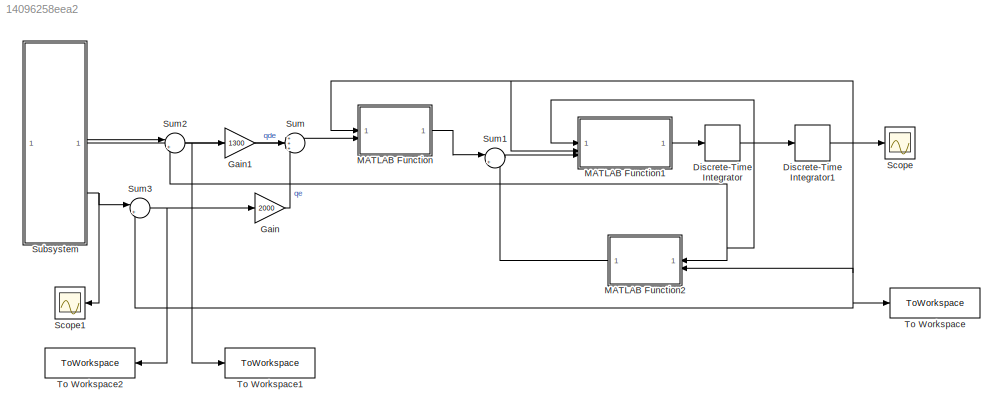
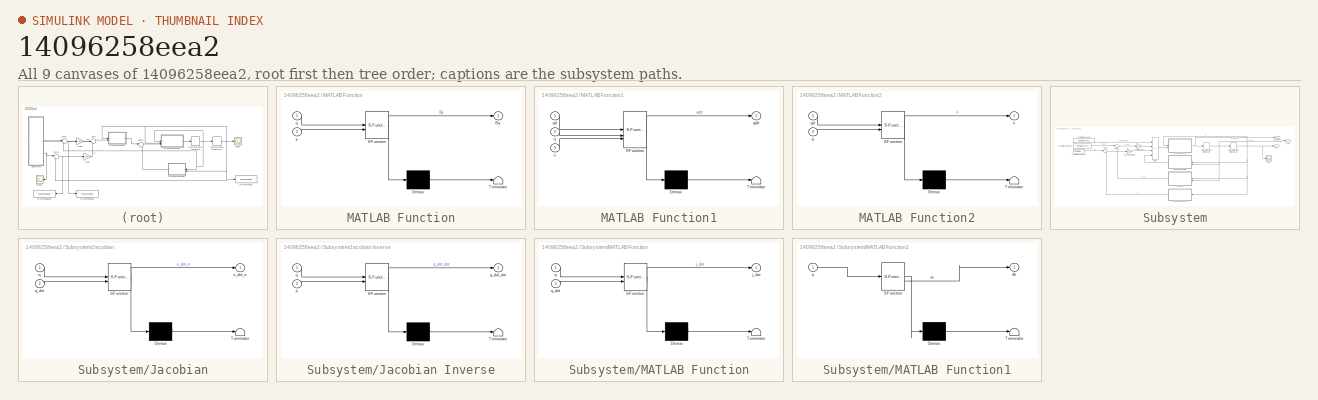
[diagram: thumbnail index - all 9 canvases of the model, root first then tree order]
MODEL slx_14096258eea2
KIND model
CONFIG AbsTol = auto
CONFIG EnableMultiTasking = off
CONFIG FixedStep = auto
CONFIG MaxStep = auto
CONFIG MinStep = auto
CONFIG RelTol = 1e-3
CONFIG SampleTimeConstraint = Unconstrained
CONFIG SolverName = VariableStepAuto
CONFIG StartTime = 0.0
CONFIG StopTime = 4
BLOCK [DiscreteIntegrator] Discrete-Time Integrator
  ICPrevOutput = DiscIntNeverNeededParam
  ICPrevScaledInput = DiscIntNeverNeededParam
  InitialCondition = [0;0;0;0]
  InitialConditionSetting = Auto
  SampleTime = Tc
BLOCK [DiscreteIntegrator] Discrete-Time Integrator1
  ICPrevOutput = DiscIntNeverNeededParam
  ICPrevScaledInput = DiscIntNeverNeededParam
  InitialCondition = q0
  InitialConditionSetting = Auto
  LimitOutput = on
  LowerSaturationLimit = [-pi/2 -pi/2 0.25 -2*pi]'
  SampleTime = Tc
  UpperSaturationLimit = [pi/2 pi/4 1 2*pi]'
BLOCK [Gain] Gain
  Gain = 2000
BLOCK [Gain] Gain1
  Gain = 1300
BLOCK [SubSystem] MATLAB Function
  ErrorFcn = Stateflow.Translate.translate
  LibrarySourceBlock = simulink/User-Defined\nFunctions/MATLAB Function
  PermitHierarchicalResolution = ExplicitOnly
  SFBlockType = MATLAB Function
  TreatAsAtomicUnit = on
BLOCK [Demux] MATLAB Function/ Demux 
  Outputs = 1
BLOCK [S-Function] MATLAB Function/ SFunction 
  EnableBusSupport = on
  FunctionName = sf_sfun
  PortCounts = [2 2]
  SFcnIsStateOwnerBlock = off
  SFunctionDeploymentMode = off
  Tag = Stateflow S-Function 5
BLOCK [Terminator] MATLAB Function/ Terminator 
BLOCK [Outport] MATLAB Function/By
BLOCK [Inport] MATLAB Function/q
BLOCK [Inport] MATLAB Function/y
  Port = 2
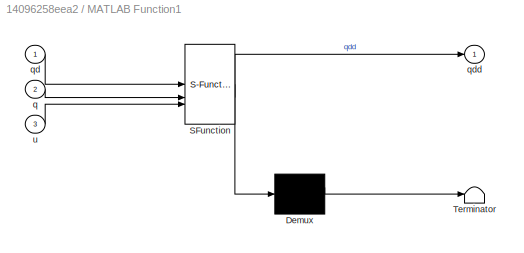
BLOCK [SubSystem] MATLAB Function1
  ErrorFcn = Stateflow.Translate.translate
  LibrarySourceBlock = simulink/User-Defined\nFunctions/MATLAB Function
  PermitHierarchicalResolution = ExplicitOnly
  SFBlockType = MATLAB Function
  TreatAsAtomicUnit = on
BLOCK [Demux] MATLAB Function1/ Demux 
  Outputs = 1
BLOCK [S-Function] MATLAB Function1/ SFunction 
  EnableBusSupport = on
  FunctionName = sf_sfun
  PortCounts = [3 2]
  SFcnIsStateOwnerBlock = off
  SFunctionDeploymentMode = off
  Tag = Stateflow S-Function 6
BLOCK [Terminator] MATLAB Function1/ Terminator 
BLOCK [Inport] MATLAB Function1/q
  Port = 2
BLOCK [Inport] MATLAB Function1/qd
BLOCK [Outport] MATLAB Function1/qdd
BLOCK [Inport] MATLAB Function1/u
  Port = 3
BLOCK [SubSystem] MATLAB Function2
  ErrorFcn = Stateflow.Translate.translate
  LibrarySourceBlock = simulink/User-Defined\nFunctions/MATLAB Function
  PermitHierarchicalResolution = ExplicitOnly
  SFBlockType = MATLAB Function
  TreatAsAtomicUnit = on
BLOCK [Demux] MATLAB Function2/ Demux 
  Outputs = 1
BLOCK [S-Function] MATLAB Function2/ SFunction 
  EnableBusSupport = on
  FunctionName = sf_sfun
  PortCounts = [2 2]
  SFcnIsStateOwnerBlock = off
  SFunctionDeploymentMode = off
  Tag = Stateflow S-Function 7
BLOCK [Terminator] MATLAB Function2/ Terminator 
BLOCK [Outport] MATLAB Function2/n
BLOCK [Inport] MATLAB Function2/q
  Port = 2
BLOCK [Inport] MATLAB Function2/qd
BLOCK [Scope] Scope
  Floating = off
  NumInputPorts = 1
  ScopeSpecificationString = Simulink.scopes.TimeScopeBlockCfg('CurrentConfiguration', extmgr.ConfigurationSet(extmgr.Configuration('Core','General UI',true),extmgr.Configuration('Core','Source UI',true),extmgr.Configuration('Sources','WiredSimulink',true),extmgr.Configuration('Visuals','Time Domain',true,'SerializedDisplays',{struct('MinYLimReal','-2.01717','MaxYLimReal','2.68446','YLabelReal','','MinYLimMag','0.00000','MaxY...<+1464ch>
BLOCK [Scope] Scope1
  Floating = off
  NumInputPorts = 1
  ScopeSpecificationString = Simulink.scopes.TimeScopeBlockCfg('CurrentConfiguration', extmgr.ConfigurationSet(extmgr.Configuration('Core','General UI',true),extmgr.Configuration('Core','Source UI',true),extmgr.Configuration('Sources','WiredSimulink',true,'DataLoggingVariableName','ScopeData1'),extmgr.Configuration('Visuals','Time Domain',true,'SerializedDisplays',{struct('MinYLimReal','-2.01717','MaxYLimReal','2.68446','YLab...<+1420ch>
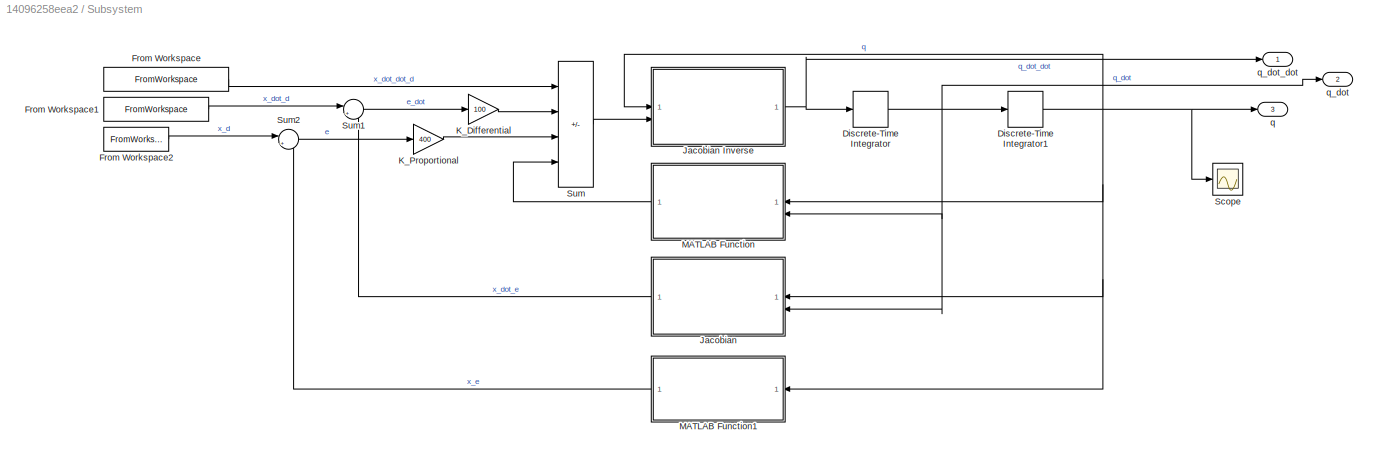
BLOCK [SubSystem] Subsystem
BLOCK [DiscreteIntegrator] Subsystem/Discrete-Time Integrator
  ICPrevOutput = DiscIntNeverNeededParam
  ICPrevScaledInput = DiscIntNeverNeededParam
  InitialConditionSetting = Auto
  LowerSaturationLimit = [-pi/2 -pi/2 0.25 -2*pi]'
  SampleTime = Tc
  UpperSaturationLimit = [pi/2 pi/4 1 2*pi]'
BLOCK [DiscreteIntegrator] Subsystem/Discrete-Time Integrator1
  ICPrevOutput = DiscIntNeverNeededParam
  ICPrevScaledInput = DiscIntNeverNeededParam
  InitialCondition = q0
  InitialConditionSetting = Auto
  LimitOutput = on
  LowerSaturationLimit = [-pi/2 -pi/2 0.25 -2*pi]'
  SampleTime = Tc
  UpperSaturationLimit = [pi/2 pi/4 1 2*pi]'
BLOCK [FromWorkspace] Subsystem/From Workspace
  OutputAfterFinalValue = Holding final value
  SampleTime = Tc
  VariableName = [t pd_dot_dot theta_d_dot_dot]
BLOCK [FromWorkspace] Subsystem/From Workspace1
  OutputAfterFinalValue = Holding final value
  SampleTime = Tc
  VariableName = [t pd_dot theta_d_dot]
BLOCK [FromWorkspace] Subsystem/From Workspace2
  OutputAfterFinalValue = Holding final value
  SampleTime = Tc
  VariableName = [t pd theta_d]
BLOCK [SubSystem] Subsystem/Jacobian
  ErrorFcn = Stateflow.Translate.translate
  LibrarySourceBlock = simulink/User-Defined\nFunctions/MATLAB Function
  PermitHierarchicalResolution = ExplicitOnly
  SFBlockType = MATLAB Function
  TreatAsAtomicUnit = on
BLOCK [SubSystem] Subsystem/Jacobian Inverse
  ErrorFcn = Stateflow.Translate.translate
  LibrarySourceBlock = simulink/User-Defined\nFunctions/MATLAB Function
  PermitHierarchicalResolution = ExplicitOnly
  SFBlockType = MATLAB Function
  TreatAsAtomicUnit = on
BLOCK [Demux] Subsystem/Jacobian Inverse/ Demux 
  Outputs = 1
BLOCK [S-Function] Subsystem/Jacobian Inverse/ SFunction 
  EnableBusSupport = on
  FunctionName = sf_sfun
  PortCounts = [2 2]
  SFcnIsStateOwnerBlock = off
  SFunctionDeploymentMode = off
  Tag = Stateflow S-Function 2
BLOCK [Terminator] Subsystem/Jacobian Inverse/ Terminator 
BLOCK [Inport] Subsystem/Jacobian Inverse/a
  Port = 2
BLOCK [Inport] Subsystem/Jacobian Inverse/q
BLOCK [Outport] Subsystem/Jacobian Inverse/q_dot_dot
BLOCK [Demux] Subsystem/Jacobian/ Demux 
  Outputs = 1
BLOCK [S-Function] Subsystem/Jacobian/ SFunction 
  EnableBusSupport = on
  FunctionName = sf_sfun
  PortCounts = [2 2]
  SFcnIsStateOwnerBlock = off
  SFunctionDeploymentMode = off
  Tag = Stateflow S-Function 3
BLOCK [Terminator] Subsystem/Jacobian/ Terminator 
BLOCK [Inport] Subsystem/Jacobian/q
BLOCK [Inport] Subsystem/Jacobian/q_dot
  Port = 2
BLOCK [Outport] Subsystem/Jacobian/x_dot_e
BLOCK [Gain] Subsystem/K_Differential
  Gain = 100
BLOCK [Gain] Subsystem/K_Proportional
  Gain = 400
BLOCK [SubSystem] Subsystem/MATLAB Function
  ErrorFcn = Stateflow.Translate.translate
  LibrarySourceBlock = simulink/User-Defined\nFunctions/MATLAB Function
  PermitHierarchicalResolution = ExplicitOnly
  SFBlockType = MATLAB Function
  TreatAsAtomicUnit = on
BLOCK [Demux] Subsystem/MATLAB Function/ Demux 
  Outputs = 1
BLOCK [S-Function] Subsystem/MATLAB Function/ SFunction 
  EnableBusSupport = on
  FunctionName = sf_sfun
  PortCounts = [2 2]
  SFcnIsStateOwnerBlock = off
  SFunctionDeploymentMode = off
  Tag = Stateflow S-Function 4
BLOCK [Terminator] Subsystem/MATLAB Function/ Terminator 
BLOCK [Outport] Subsystem/MATLAB Function/j_dot
BLOCK [Inport] Subsystem/MATLAB Function/q
BLOCK [Inport] Subsystem/MATLAB Function/q_dot
  Port = 2
BLOCK [SubSystem] Subsystem/MATLAB Function1
  ErrorFcn = Stateflow.Translate.translate
  LibrarySourceBlock = simulink/User-Defined\nFunctions/MATLAB Function
  PermitHierarchicalResolution = ExplicitOnly
  SFBlockType = MATLAB Function
  TreatAsAtomicUnit = on
BLOCK [Demux] Subsystem/MATLAB Function1/ Demux 
  Outputs = 1
BLOCK [S-Function] Subsystem/MATLAB Function1/ SFunction 
  EnableBusSupport = on
  FunctionName = sf_sfun
  PortCounts = [1 2]
  SFcnIsStateOwnerBlock = off
  SFunctionDeploymentMode = off
  Tag = Stateflow S-Function 1
BLOCK [Terminator] Subsystem/MATLAB Function1/ Terminator 
BLOCK [Outport] Subsystem/MATLAB Function1/dk
BLOCK [Inport] Subsystem/MATLAB Function1/q
BLOCK [Scope] Subsystem/Scope
  Floating = off
  NumInputPorts = 1
  ScopeSpecificationString = Simulink.scopes.TimeScopeBlockCfg('CurrentConfiguration', extmgr.ConfigurationSet(extmgr.Configuration('Core','General UI',true),extmgr.Configuration('Core','Source UI',true),extmgr.Configuration('Sources','WiredSimulink',true,'DataLoggingVariableName','ScopeData2'),extmgr.Configuration('Visuals','Time Domain',true,'SerializedDisplays',{struct('MinYLimReal','-2.01717','MaxYLimReal','2.68446','YLab...<+1380ch>
BLOCK [Sum] Subsystem/Sum
  IconShape = rectangular
  Inputs = +++-
BLOCK [Sum] Subsystem/Sum1
  Inputs = |+-
BLOCK [Sum] Subsystem/Sum2
  Inputs = |+-
BLOCK [Outport] Subsystem/q
  Port = 3
BLOCK [Outport] Subsystem/q_dot
  Port = 2
BLOCK [Outport] Subsystem/q_dot_dot
BLOCK [Sum] Sum
  Inputs = +++
BLOCK [Sum] Sum1
  Inputs = |++
BLOCK [Sum] Sum2
  Inputs = |+-
BLOCK [Sum] Sum3
  Inputs = |+-
BLOCK [ToWorkspace] To Workspace
  FixptAsFi = on
  MaxDataPoints = inf
  SampleTime = Tc
  VariableName = q
BLOCK [ToWorkspace] To Workspace1
  FixptAsFi = on
  MaxDataPoints = inf
  SampleTime = Tc
  VariableName = tracking_qd
BLOCK [ToWorkspace] To Workspace2
  FixptAsFi = on
  MaxDataPoints = inf
  SampleTime = Tc
  VariableName = tracking_q
NET Discrete-Time Integrator1:1 -> MATLAB Function1:2, MATLAB Function2:2, MATLAB Function:1, Scope:1, Sum3:2, To Workspace:1
NET Discrete-Time Integrator:1 -> Discrete-Time Integrator1:1, MATLAB Function1:1, MATLAB Function2:1, Sum2:2
LINE Gain1:1 -> Sum:2
LINE Gain:1 -> Sum:3
LINE MATLAB Function1:1 -> Discrete-Time Integrator:1
LINE MATLAB Function2:1 -> Sum1:2
LINE MATLAB Function:1 -> Sum1:1
NET Subsystem/Discrete-Time Integrator1:1 -> Subsystem/Jacobian Inverse:1, Subsystem/Jacobian:1, Subsystem/MATLAB Function1:1, Subsystem/MATLAB Function:1, Subsystem/Scope:1, Subsystem/q:1
NET Subsystem/Discrete-Time Integrator:1 -> Subsystem/Discrete-Time Integrator1:1, Subsystem/Jacobian:2, Subsystem/MATLAB Function:2, Subsystem/q_dot:1
LINE Subsystem/From Workspace1:1 -> Subsystem/Sum1:1
LINE Subsystem/From Workspace2:1 -> Subsystem/Sum2:1
LINE Subsystem/From Workspace:1 -> Subsystem/Sum:1
NET Subsystem/Jacobian Inverse:1 -> Subsystem/Discrete-Time Integrator:1, Subsystem/q_dot_dot:1
LINE Subsystem/Jacobian:1 -> Subsystem/Sum1:2
LINE Subsystem/K_Differential:1 -> Subsystem/Sum:2
LINE Subsystem/K_Proportional:1 -> Subsystem/Sum:3
LINE Subsystem/MATLAB Function1:1 -> Subsystem/Sum2:2
LINE Subsystem/MATLAB Function:1 -> Subsystem/Sum:4
LINE Subsystem/Sum1:1 -> Subsystem/K_Differential:1
LINE Subsystem/Sum2:1 -> Subsystem/K_Proportional:1
LINE Subsystem/Sum:1 -> Subsystem/Jacobian Inverse:2
LINE Subsystem:1 -> Sum:1
LINE Subsystem:2 -> Sum2:1
NET Subsystem:3 -> Scope1:1, Sum3:1
LINE Sum1:1 -> MATLAB Function1:3
NET Sum2:1 -> Gain1:1, To Workspace1:1
NET Sum3:1 -> Gain:1, To Workspace2:1
LINE Sum:1 -> MATLAB Function:2
note: NET lines group one-source signal fan-out (src -> all destinations, sorted); 1:1 wires keep LINE
CHART Subsystem/Jacobian Inverse states=1 transitions=1
  STATE_LABEL 'eML_blk_kernel()'
  STATE_LABEL 'SCRIPT:\nfunction q_dot_dot = jacobian_inverse(q, a)\n\n%assigning the input to joint variables\ntheta1 = q(1);\ntheta2 = q(2);\nd3 = q(3);\ntheta4 = q(4);\n\n%given link lengths\na1 = 0.5;\na2 = 0.5;\n\n% homogeneous matrix from base frame to zeroth frame\nHB0 = [1 0 0 0;0 1 0 0;0 0 1 1;0 0 0 1];\n% homogeneous matrix from zeroth frame to first frame\nH01 = [cos(theta1) -sin(theta1) 0 a1*cos(theta1);sin(theta1) ...<+1254ch>'
CHART Subsystem/Jacobian states=1 transitions=1
  STATE_LABEL 'eML_blk_kernel()'
  STATE_LABEL 'SCRIPT:\nfunction x_dot_e = jacobian(q, q_dot)\n\n%assigning the input to joint variables\ntheta1 = q(1);\ntheta2 = q(2);\nd3 = q(3);\ntheta4 = q(4);\n\n%given link lengths\na1 = 0.5;\na2 = 0.5;\n\n% homogeneous matrix from base frame to zeroth frame\nHB0 = [1 0 0 0;0 1 0 0;0 0 1 1;0 0 0 1];\n% homogeneous matrix from zeroth frame to first frame\nH01 = [cos(theta1) -sin(theta1) 0 a1*cos(theta1);sin(theta1) cos(th...<+1183ch>'
CHART Subsystem/MATLAB Function states=1 transitions=1
  STATE_LABEL 'eML_blk_kernel()'
  STATE_LABEL 'SCRIPT:\nfunction j_dot = jacobian_dot(q, q_dot)\n\n% declaring variables\ntheta1 = q(1);\ntheta2 = q(2);\ntheta_d1 = q_dot(1);\ntheta_d2 = q_dot(2);\n\n% defining the jacobian_dot function\nJacobian_dot = [- (cos(theta1)*theta_d1)/2 - (cos(theta1 + theta2)*theta_d1)/2 - (cos(theta1 + theta2)*theta_d2)/2, -(cos(theta1 + theta2)*(theta_d1 + theta_d2))/2, 0, 0; -(sin(theta1)*theta_d1)/2 - (sin(theta1 + theta2...<+161ch>'
CHART MATLAB Function states=1 transitions=1
  STATE_LABEL 'eML_blk_kernel()'
  STATE_LABEL 'SCRIPT:\nfunction By = B(q,y)\nt2=q(2);\n% syms A1 A2 t1 t2 d3 t4 m1 m2 m3 m4 kr1 kr2 kr3 kr4 Il1 Il2 Il4 Im1 Im2 Im3 Im4 L1 L2 td1 td2 dd3 td4\nA1 = 0.5;\nA2 = 0.5;\nL1 = 0.25;\nL2 = 0.25;\nkr1 = 1;\nkr2 = 1;\nkr3 = 50;\nkr4 = 20;\nm1 = 25;\nm2 = 25;\nm3 = 10;\nm4 = 5;\nIl1 = 5;\nIl2 = 5;\nIl4 = 1;\nIl3 = 0;\nIm1 = 0.0001;\nIm2 = 0.0001;\nIm3 = 0.01;\nIm4 = 0.005;\n\n%% Position\n% JpM1 = [0 0 0 0; 0 0 0 0; 0 0 0 0];\n% Jp...<+2102ch>'
CHART MATLAB Function1 states=1 transitions=1
  STATE_LABEL 'eML_blk_kernel()'
  STATE_LABEL 'SCRIPT:\nfunction qdd = Manipulator(qd,q,u)\n% syms A1 A2 t1 t2 d3 t4 m1 m2 m3 m4 kr1 kr2 kr3 kr4 Il1 Il2 Il4 Im1 Im2 Im3 Im4 L1 L2 td1 td2 dd3 td4\nt2=q(2);\ntd1=qd(1);\ntd2=qd(2);\nA1 = 0.5;\nA2 = 0.5;\nL1 = 0.25;\nL2 = 0.25;\nkr1 = 1;\nkr2 = 1;\nkr3 = 50;\nkr4 = 20;\nm1 = 25;\nm2 = 25;\nm3 = 10;\nm4 = 5;\nIl1 = 5;\nIl2 = 5;\nIl4 = 1;\nIl3 = 0;\nIm1 = 0.0001;\nIm2 = 0.0001;\nIm3 = 0.01;\nIm4 = 0.005;\nFm1=0.0001;\nFm2=0.0...<+2968ch>'
CHART MATLAB Function2 states=1 transitions=1
  STATE_LABEL 'eML_blk_kernel()'
  STATE_LABEL 'SCRIPT:\nfunction n = n(qd, q)\nt2=q(2);\ntd1=qd(1);\ntd2=qd(2);\nFm1=0.0001;\nFm2=0.0001;\nFm3=0.01;\nFm4=0.005;\nkr1 = 1;\nkr2 = 1;\nkr3 = 50;\nkr4 = 20;\nm1 = 25;\nm2 = 25;\nm3 = 10;\nm4 = 5;\n% q=[t1 t2 d3 t4];\n% qd=[td1 td2 dd3 td4];\n% syms(\'C\',[4 4 4]);\n% syms("cf",[4 4]);\n% for i=1:4\n%     for j=1:4\n%         for k=1:4\n%             Cs(i,j,k)=0.5*diff(B(i,j),q(k))+0.5*(diff(B(i,k),q(j))-diff(B(j,k),q(i)));\n...<+574ch>'
CHART Subsystem/MATLAB Function1 states=1 transitions=1
  STATE_LABEL 'eML_blk_kernel()'
  STATE_LABEL 'SCRIPT:\nfunction dk = direct_kin(q)\n\n%assigning the input to joint variables\ntheta1 = q(1);\ntheta2 = q(2);\nd3 = q(3);\ntheta4 = q(4);\n\n%given link lengths\na1 = 0.5;\na2 = 0.5;\n\n% homogeneous matrix from base frame to zeroth frame\nHB0 = [1 0 0 0;0 1 0 0;0 0 1 1;0 0 0 1];\n% homogeneous matrix from zeroth frame to first frame\nH01 = [cos(theta1) -sin(theta1) 0 a1*cos(theta1);sin(theta1) cos(theta1) 0 a1...<+885ch>'
CHART  states=0 transitions=0
CHART  states=0 transitions=0
CHART  states=0 transitions=0
CHART  states=0 transitions=0
CHART  states=0 transitions=0
CHART  states=0 transitions=0
CHART  states=0 transitions=0
